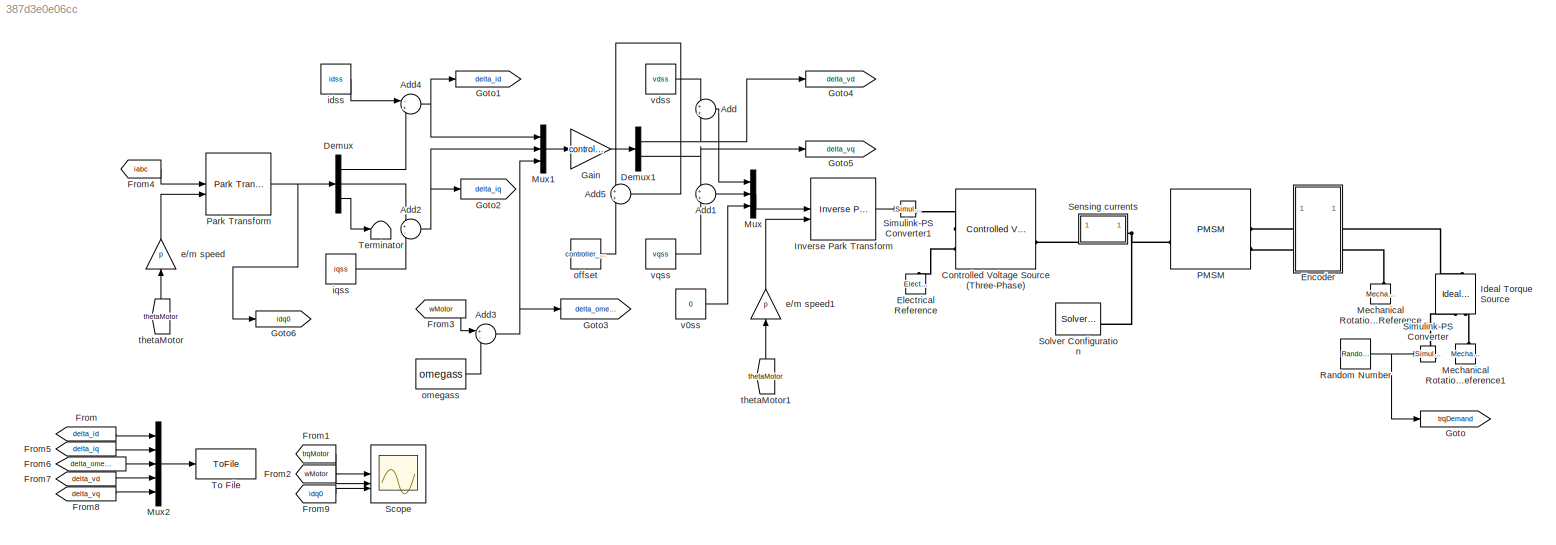
MODEL slx_387d3e0e06cc
KIND model
CONFIG AbsTol = auto
CONFIG EnableMultiTasking = off
CONFIG FixedStep = auto
CONFIG MaxStep = auto
CONFIG MinStep = auto
CONFIG RelTol = 1e-3
CONFIG SampleTimeConstraint = Unconstrained
CONFIG SolverName = VariableStepAuto
CONFIG StartTime = 0.0
CONFIG StopTime = 10
BLOCK [Sum] Add
BLOCK [Sum] Add1
BLOCK [Sum] Add2
  Inputs = +-
BLOCK [Sum] Add3
  Inputs = +-
BLOCK [Sum] Add4
  Inputs = -+
BLOCK [Sum] Add5
BLOCK [Reference] Controlled Voltage Source (Three-Phase)  REF=ee_lib/Sources/Controlled Voltage
Source
(Three-Phase)
  SourceBlock = ee_lib/Sources/Controlled Voltage\nSource\n(Three-Phase)
  SourceType = Controlled Voltage\nSource\n(Three-Phase)
BLOCK [Demux] Demux
  Outputs = 3
BLOCK [Demux] Demux1
  Outputs = 2
BLOCK [Reference] Electrical Reference  REF=fl_lib/Electrical/Electrical Elements/Electrical Reference
  LibrarySourceBlock = ee_lib/Connectors &\nReferences/Electrical Reference
  NameLocation = right
  SourceBlock = fl_lib/Electrical/Electrical Elements/Electrical Reference
  SourceType = Electrical Reference
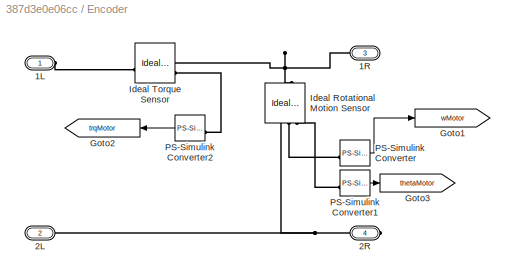
BLOCK [SubSystem] Encoder
BLOCK [PMIOPort] Encoder/1L
  Side = Left
BLOCK [PMIOPort] Encoder/1R
  Port = 3
  Side = Right
BLOCK [PMIOPort] Encoder/2L
  Port = 2
  Side = Left
BLOCK [PMIOPort] Encoder/2R
  Port = 4
  Side = Right
BLOCK [Goto] Encoder/Goto1
  GotoTag = wMotor
  NameLocation = top
  TagVisibility = global
BLOCK [Goto] Encoder/Goto2
  GotoTag = trqMotor
  TagVisibility = global
BLOCK [Goto] Encoder/Goto3
  GotoTag = thetaMotor
  NameLocation = top
  TagVisibility = global
BLOCK [Reference] Encoder/Ideal Rotational Motion Sensor  REF=fl_lib/Mechanical/Mechanical Sensors/Ideal Rotational
Motion Sensor
  NameLocation = right
  SourceBlock = fl_lib/Mechanical/Mechanical Sensors/Ideal Rotational\nMotion Sensor
  SourceType = Ideal Rotational\nMotion Sensor
BLOCK [Reference] Encoder/Ideal Torque Sensor  REF=fl_lib/Mechanical/Mechanical Sensors/Ideal Torque Sensor
  SourceBlock = fl_lib/Mechanical/Mechanical Sensors/Ideal Torque Sensor
  SourceType = Ideal Torque Sensor
BLOCK [Reference] Encoder/PS-Simulink Converter  REF=nesl_utility/PS-Simulink
Converter
  SourceBlock = nesl_utility/PS-Simulink\nConverter
  SourceType = PS-Simulink\nConverter
BLOCK [Reference] Encoder/PS-Simulink Converter1  REF=nesl_utility/PS-Simulink
Converter
  SourceBlock = nesl_utility/PS-Simulink\nConverter
  SourceType = PS-Simulink\nConverter
BLOCK [Reference] Encoder/PS-Simulink Converter2  REF=nesl_utility/PS-Simulink
Converter
  NameLocation = top
  SourceBlock = nesl_utility/PS-Simulink\nConverter
  SourceType = PS-Simulink\nConverter
BLOCK [From] From
  GotoTag = delta_id
  TagVisibility = global
BLOCK [From] From1
  GotoTag = trqMotor
  TagVisibility = global
BLOCK [From] From2
  GotoTag = wMotor
  TagVisibility = global
BLOCK [From] From3
  GotoTag = wMotor
  TagVisibility = global
BLOCK [From] From4
  GotoTag = iabc
  TagVisibility = global
BLOCK [From] From5
  GotoTag = delta_iq
  TagVisibility = global
BLOCK [From] From6
  GotoTag = delta_omega
  TagVisibility = global
BLOCK [From] From7
  GotoTag = delta_vd
  TagVisibility = global
BLOCK [From] From8
  GotoTag = delta_vq
  TagVisibility = global
BLOCK [From] From9
  GotoTag = idq0
  TagVisibility = global
BLOCK [Gain] Gain
  Gain = controller_gain
  Multiplication = Matrix(K*u)
BLOCK [Goto] Goto
  GotoTag = trqDemand
  TagVisibility = global
BLOCK [Goto] Goto1
  GotoTag = delta_id
  TagVisibility = global
BLOCK [Goto] Goto2
  GotoTag = delta_iq
  TagVisibility = global
BLOCK [Goto] Goto3
  GotoTag = delta_omega
  TagVisibility = global
BLOCK [Goto] Goto4
  GotoTag = delta_vd
  TagVisibility = global
BLOCK [Goto] Goto5
  GotoTag = delta_vq
  TagVisibility = global
BLOCK [Goto] Goto6
  GotoTag = idq0
  TagVisibility = global
BLOCK [Reference] Ideal Torque Source  REF=fl_lib/Mechanical/Mechanical Sources/Ideal Torque Source
  NameLocation = right
  SourceBlock = fl_lib/Mechanical/Mechanical Sources/Ideal Torque Source
  SourceType = Ideal Torque Source
BLOCK [Reference] Inverse Park Transform  REF=eeTransforms/Inverse
Park Transform
  LibrarySourceBlock = ee_sl_lib/Mathematical\nTransforms/Inverse\nPark Transform
  SourceBlock = eeTransforms/Inverse\nPark Transform
  SourceType = Inverse Park Transform
BLOCK [Reference] Mechanical Rotational Reference  REF=fl_lib/Mechanical/Rotational Elements/Mechanical
Rotational Reference
  NameLocation = right
  SourceBlock = fl_lib/Mechanical/Rotational Elements/Mechanical\nRotational Reference
  SourceType = Mechanical\nRotational Reference
BLOCK [Reference] Mechanical Rotational Reference1  REF=fl_lib/Mechanical/Rotational Elements/Mechanical
Rotational Reference
  NameLocation = right
  SourceBlock = fl_lib/Mechanical/Rotational Elements/Mechanical\nRotational Reference
  SourceType = Mechanical\nRotational Reference
BLOCK [Mux] Mux
  DisplayOption = bar
  Inputs = 3
BLOCK [Mux] Mux1
  DisplayOption = bar
  Inputs = 3
BLOCK [Mux] Mux2
  DisplayOption = bar
  Inputs = 5
BLOCK [Reference] PMSM  REF=ee_lib/Electromechanical/Permanent Magnet/PMSM
  SourceBlock = ee_lib/Electromechanical/Permanent Magnet/PMSM
  SourceType = PMSM
BLOCK [Reference] Park Transform  REF=eeTransforms/Park Transform
  LibrarySourceBlock = ee_sl_lib/Mathematical\nTransforms/Park Transform
  SourceBlock = eeTransforms/Park Transform
  SourceType = Park Transform
BLOCK [RandomNumber] Random Number
  Mean = tl_mean
  SampleTime = 1e-3
  Variance = tl_sd^2
BLOCK [Scope] Scope
  Floating = off
  NumInputPorts = 3
  ScopeSpecificationString = Simulink.scopes.TimeScopeBlockCfg('CurrentConfiguration', extmgr.ConfigurationSet(extmgr.Configuration('Core','General UI',true),extmgr.Configuration('Core','Source UI',true),extmgr.Configuration('Sources','WiredSimulink',true),extmgr.Configuration('Visuals','Time Domain',true,'SerializedDisplays',{struct('MinYLimReal','-7.93373','MaxYLimReal','7.26542','YLabelReal','','MinYLimMag','0.00000','MaxY...<+3231ch>
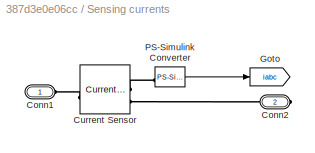
BLOCK [SubSystem] Sensing currents
BLOCK [PMIOPort] Sensing currents/Conn1
  Side = Left
BLOCK [PMIOPort] Sensing currents/Conn2
  Port = 2
  Side = Right
BLOCK [Reference] Sensing currents/Current Sensor  REF=ee_lib/Sensors &
Transducers/Current Sensor
(Three-Phase)
  SourceBlock = ee_lib/Sensors &\nTransducers/Current Sensor\n(Three-Phase)
  SourceType = Current Sensor\n(Three-Phase)
BLOCK [Goto] Sensing currents/Goto
  GotoTag = iabc
  TagVisibility = global
BLOCK [Reference] Sensing currents/PS-Simulink Converter  REF=nesl_utility/PS-Simulink
Converter
  SourceBlock = nesl_utility/PS-Simulink\nConverter
  SourceType = PS-Simulink\nConverter
BLOCK [Reference] Simulink-PS Converter  REF=nesl_utility/Simulink-PS
Converter
  SourceBlock = nesl_utility/Simulink-PS\nConverter
  SourceType = Simulink-PS\nConverter
BLOCK [Reference] Simulink-PS Converter1  REF=nesl_utility/Simulink-PS
Converter
  SourceBlock = nesl_utility/Simulink-PS\nConverter
  SourceType = Simulink-PS\nConverter
BLOCK [Reference] Solver Configuration  REF=nesl_utility/Solver
Configuration
  SourceBlock = nesl_utility/Solver\nConfiguration
  SourceType = Solver\nConfiguration
BLOCK [Terminator] Terminator
BLOCK [ToFile] To File
  Filename = data.mat
BLOCK [Gain] e//m speed
  Gain = p
  NameLocation = right
BLOCK [Gain] e//m speed1
  Gain = p
  NameLocation = right
BLOCK [Constant] idss
  Value = idss
BLOCK [Constant] iqss
  Value = iqss
BLOCK [Constant] offset
  Value = controller_offset
BLOCK [Constant] omegass
  Value = omegass
BLOCK [From] thetaMotor
  GotoTag = thetaMotor
  NameLocation = right
  TagVisibility = global
BLOCK [From] thetaMotor1
  GotoTag = thetaMotor
  NameLocation = right
  TagVisibility = global
BLOCK [Constant] v0ss
  Value = 0
BLOCK [Constant] vdss
  Value = vdss
BLOCK [Constant] vqss
  Value = vqss
LINE Add1:1 -> Mux:2
NET Add2:1 -> Goto2:1, Mux1:2
NET Add3:1 -> Goto3:1, Mux1:3
NET Add4:1 -> Goto1:1, Mux1:1
LINE Add5:1 -> Demux1:1
LINE Add:1 -> Mux:1
NET Demux1:1 -> Add:2, Goto4:1
NET Demux1:2 -> Add1:1, Goto5:1
LINE Demux:1 -> Add4:2
LINE Demux:2 -> Add2:1
LINE Demux:3 -> Terminator:1
LINE Encoder/PS-Simulink Converter1:1 -> Encoder/Goto3:1
LINE Encoder/PS-Simulink Converter2:1 -> Encoder/Goto2:1
LINE Encoder/PS-Simulink Converter:1 -> Encoder/Goto1:1
LINE From1:1 -> Scope:1
LINE From2:1 -> Scope:2
LINE From3:1 -> Add3:1
LINE From4:1 -> Park Transform:1
LINE From5:1 -> Mux2:2
LINE From6:1 -> Mux2:3
LINE From7:1 -> Mux2:4
LINE From8:1 -> Mux2:5
LINE From9:1 -> Scope:3
LINE From:1 -> Mux2:1
LINE Gain:1 -> Add5:1
LINE Inverse Park Transform:1 -> Simulink-PS Converter1:1
LINE Mux1:1 -> Gain:1
LINE Mux2:1 -> To File:1
LINE Mux:1 -> Inverse Park Transform:1
NET Park Transform:1 -> Demux:1, Goto6:1
NET Random Number:1 -> Goto:1, Simulink-PS Converter:1
LINE Sensing currents/PS-Simulink Converter:1 -> Sensing currents/Goto:1
LINE e//m speed1:1 -> Inverse Park Transform:2
LINE e//m speed:1 -> Park Transform:2
LINE idss:1 -> Add4:1
LINE iqss:1 -> Add2:2
LINE offset:1 -> Add5:2
LINE omegass:1 -> Add3:2
LINE thetaMotor1:1 -> e//m speed1:1
LINE thetaMotor:1 -> e//m speed:1
LINE v0ss:1 -> Mux:3
LINE vdss:1 -> Add:1
LINE vqss:1 -> Add1:2
PLINE Controlled Voltage Source (Three-Phase):LConn1 -- Simulink-PS Converter1:RConn1
PLINE Controlled Voltage Source (Three-Phase):LConn2 -- Electrical Reference:LConn1
PLINE Controlled Voltage Source (Three-Phase):RConn1 -- Sensing currents:LConn1
PLINE Encoder/1L:RConn1 -- Encoder/Ideal Torque Sensor:LConn1
PNET net1: Encoder/1R:RConn1 -- Encoder/Ideal Rotational Motion Sensor:LConn1 -- Encoder/Ideal Torque Sensor:RConn1
PNET net2: Encoder/2L:RConn1 -- Encoder/2R:RConn1 -- Encoder/Ideal Rotational Motion Sensor:RConn1
PLINE Encoder/Ideal Rotational Motion Sensor:RConn2 -- Encoder/PS-Simulink Converter:LConn1
PLINE Encoder/Ideal Rotational Motion Sensor:RConn3 -- Encoder/PS-Simulink Converter1:LConn1
PLINE Encoder/Ideal Torque Sensor:RConn2 -- Encoder/PS-Simulink Converter2:LConn1
PLINE Encoder:LConn1 -- PMSM:RConn1
PLINE Encoder:LConn2 -- PMSM:RConn2
PLINE Encoder:RConn1 -- Ideal Torque Source:LConn1
PLINE Encoder:RConn2 -- Mechanical Rotational Reference:LConn1
PLINE Ideal Torque Source:RConn1 -- Simulink-PS Converter:RConn1
PLINE Ideal Torque Source:RConn2 -- Mechanical Rotational Reference1:LConn1
PNET net3: PMSM:LConn1 -- Sensing currents:RConn1 -- Solver Configuration:RConn1
PLINE Sensing currents/Conn1:RConn1 -- Sensing currents/Current Sensor:LConn1
PLINE Sensing currents/Conn2:RConn1 -- Sensing currents/Current Sensor:RConn2
PLINE Sensing currents/Current Sensor:RConn1 -- Sensing currents/PS-Simulink Converter:LConn1
note: NET lines group one-source signal fan-out (src -> all destinations, sorted); 1:1 wires keep LINE; PNET lines group multi-terminal physical nets as a canonical sorted terminal list (undirected conserving connections); 2-terminal nets keep the pairwise PLINE form
